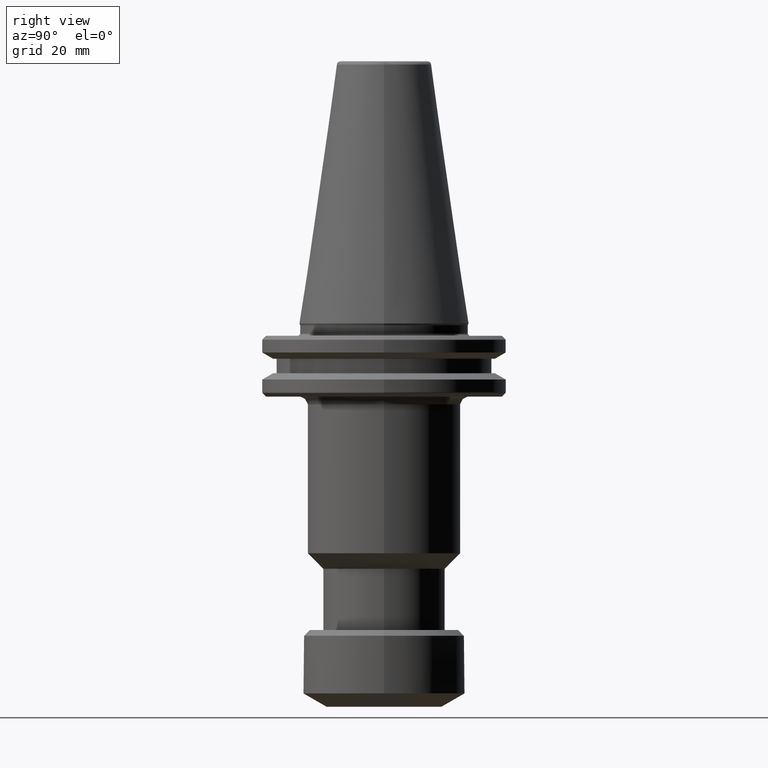
[diagram: clean part render]
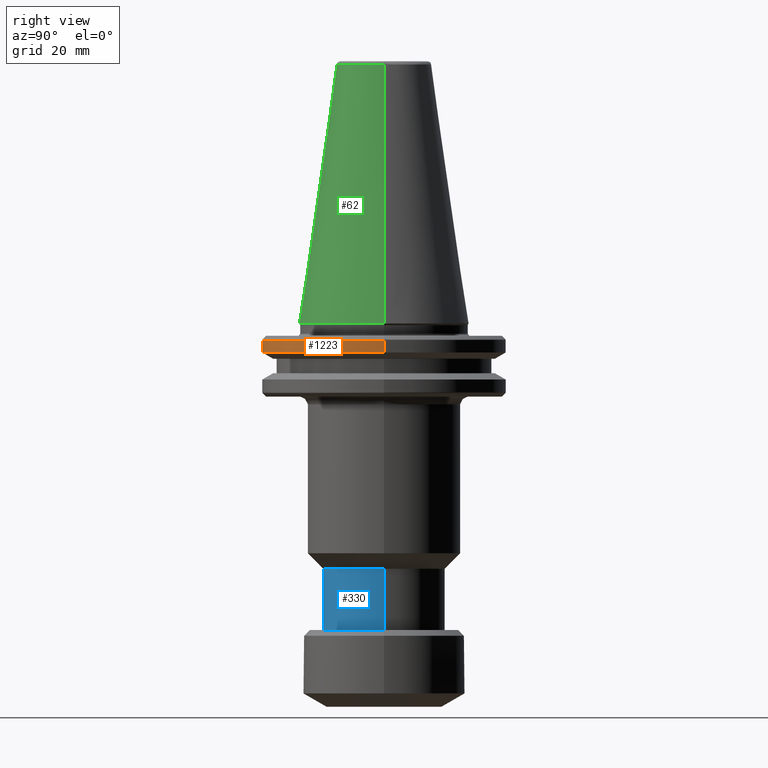
[diagram: same view with three faces highlighted in distinct colors, each labeled with its STEP entity id]
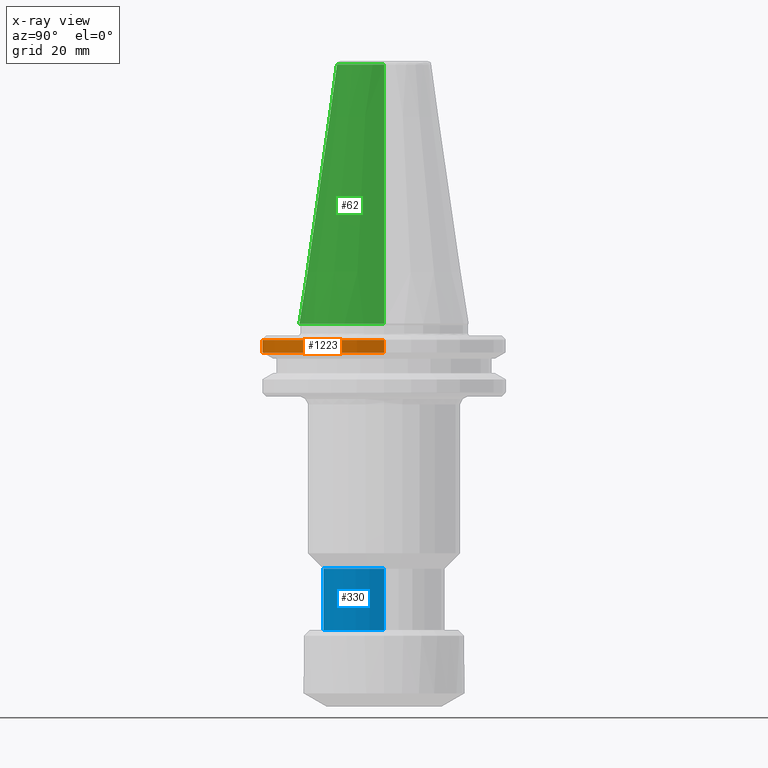
[diagram: x-ray of the same camera — body ghosted, the three highlighted faces saturated]
A machine part, right view with three faces highlighted in distinct colors.
The next image is the same camera in x-ray (body ghosted, the three faces saturated) — at least one of them is partly hidden behind the body in this view.
Their STEP definitions:

[orange] entity #1223 — the highlighted conical surface has half-angle 0.001 deg.
#30 = AXIS2_PLACEMENT_3D ( 'NONE', #211, #1107, #1100 ) ;
#75 = CARTESIAN_POINT ( 'NONE',  ( -31.75202278528214400, 0.0000000000000000000, -4.365064469087714700 ) ) ;
#108 = DIRECTION ( 'NONE',  ( -1.000000000000000000, 0.0000000000000000000, 0.0000000000000000000 ) ) ;
#151 = VERTEX_POINT ( 'NONE', #439 ) ;
#178 = ORIENTED_EDGE ( 'NONE', *, *, #1316, .T. ) ;
#210 = EDGE_CURVE ( 'NONE', #1372, #361, #1543, .T. ) ;
#211 = CARTESIAN_POINT ( 'NONE',  ( 0.0000000000000000000, 0.0000000000000000000, -7.578119752296469600 ) ) ;
#226 = VECTOR ( 'NONE', #997, 1000.000000000000000 ) ;
#340 = ORIENTED_EDGE ( 'NONE', *, *, #640, .F. ) ;
#346 = CARTESIAN_POINT ( 'NONE',  ( 31.75202278528214400, 0.0000000000000000000, -4.365064469087714700 ) ) ;
#361 = VERTEX_POINT ( 'NONE', #1569 ) ;
#439 = CARTESIAN_POINT ( 'NONE',  ( -31.75208562117094100, 0.0000000000000000000, -7.578119752296469600 ) ) ;
#562 = VERTEX_POINT ( 'NONE', #1239 ) ;
#640 = EDGE_CURVE ( 'NONE', #562, #1372, #781, .T. ) ;
#699 = CIRCLE ( 'NONE', #30, 31.75208562117094100 ) ;
#746 = CONICAL_SURFACE ( 'NONE', #833, 31.75202278528214400, 1.955642939544399700E-005 ) ;
#781 = CIRCLE ( 'NONE', #943, 31.75202278528214400 ) ;
#826 = DIRECTION ( 'NONE',  ( 1.955642939419742500E-005, 2.394971866035508900E-021, -0.9999999998087730800 ) ) ;
#833 = AXIS2_PLACEMENT_3D ( 'NONE', #1120, #1127, #108 ) ;
#943 = AXIS2_PLACEMENT_3D ( 'NONE', #1251, #1640, #1503 ) ;
#997 = DIRECTION ( 'NONE',  ( -1.955642939419742500E-005, 0.0000000000000000000, -0.9999999998087730800 ) ) ;
#1100 = DIRECTION ( 'NONE',  ( 1.000000000000000000, 0.0000000000000000000, 0.0000000000000000000 ) ) ;
#1103 = EDGE_LOOP ( 'NONE', ( #1214, #340, #1359, #178 ) ) ;
#1107 = DIRECTION ( 'NONE',  ( -0.0000000000000000000, -0.0000000000000000000, 1.000000000000000000 ) ) ;
#1120 = CARTESIAN_POINT ( 'NONE',  ( 0.0000000000000000000, 0.0000000000000000000, -4.365064469087714700 ) ) ;
#1127 = DIRECTION ( 'NONE',  ( 0.0000000000000000000, 0.0000000000000000000, -1.000000000000000000 ) ) ;
#1158 = FACE_OUTER_BOUND ( 'NONE', #1103, .T. ) ;
#1160 = EDGE_CURVE ( 'NONE', #562, #151, #1621, .T. ) ;
#1207 = VECTOR ( 'NONE', #826, 1000.000000000000000 ) ;
#1214 = ORIENTED_EDGE ( 'NONE', *, *, #210, .F. ) ;
#1223 = ADVANCED_FACE ( 'NONE', ( #1158 ), #746, .T. ) ;
#1239 = CARTESIAN_POINT ( 'NONE',  ( -31.75202278528214400, 3.888501307044960700E-015, -4.365064469087714700 ) ) ;
#1251 = CARTESIAN_POINT ( 'NONE',  ( 0.0000000000000000000, 0.0000000000000000000, -4.365064469087714700 ) ) ;
#1316 = EDGE_CURVE ( 'NONE', #151, #361, #699, .T. ) ;
#1359 = ORIENTED_EDGE ( 'NONE', *, *, #1160, .T. ) ;
#1372 = VERTEX_POINT ( 'NONE', #346 ) ;
#1503 = DIRECTION ( 'NONE',  ( 1.000000000000000000, 0.0000000000000000000, 0.0000000000000000000 ) ) ;
#1543 = LINE ( 'NONE', #1589, #1207 ) ;
#1569 = CARTESIAN_POINT ( 'NONE',  ( 31.75208562117094100, 3.888509002221969500E-015, -7.578119752296469600 ) ) ;
#1589 = CARTESIAN_POINT ( 'NONE',  ( 31.75202278528214400, 3.888501307044960700E-015, -4.365064469087714700 ) ) ;
#1621 = LINE ( 'NONE', #75, #226 ) ;
#1640 = DIRECTION ( 'NONE',  ( -0.0000000000000000000, -0.0000000000000000000, 1.000000000000000000 ) ) ;

[blue] entity #330 — the highlighted cylindrical surface (partial cylindrical patch) has radius 15.95 mm, axis along (-0, 0, 1).
#18 = EDGE_CURVE ( 'NONE', #1295, #1066, #481, .T. ) ;
#95 = DIRECTION ( 'NONE',  ( -4.350403701509233400E-016, 0.0000000000000000000, 1.000000000000000000 ) ) ;
#184 = DIRECTION ( 'NONE',  ( -4.350403701509233400E-016, 0.0000000000000000000, 1.000000000000000000 ) ) ;
#220 = CARTESIAN_POINT ( 'NONE',  ( 15.95000000000000300, 0.0000000000000000000, -64.00000000000000000 ) ) ;
#259 = VERTEX_POINT ( 'NONE', #1170 ) ;
#268 = DIRECTION ( 'NONE',  ( 1.000000000000000000, 0.0000000000000000000, 0.0000000000000000000 ) ) ;
#279 = DIRECTION ( 'NONE',  ( -4.350403701509233400E-016, 0.0000000000000000000, 1.000000000000000000 ) ) ;
#330 = ADVANCED_FACE ( 'NONE', ( #789 ), #711, .T. ) ;
#471 = CARTESIAN_POINT ( 'NONE',  ( 15.95000000000000300, 0.0000000000000000000, -79.99999999999998600 ) ) ;
#481 = CIRCLE ( 'NONE', #1459, 15.95000000000000300 ) ;
#577 = ORIENTED_EDGE ( 'NONE', *, *, #18, .T. ) ;
#626 = EDGE_CURVE ( 'NONE', #259, #1529, #1194, .T. ) ;
#675 = ORIENTED_EDGE ( 'NONE', *, *, #626, .F. ) ;
#711 = CYLINDRICAL_SURFACE ( 'NONE', #894, 15.95000000000000300 ) ;
#742 = EDGE_LOOP ( 'NONE', ( #1591, #577, #804, #675 ) ) ;
#784 = LINE ( 'NONE', #1392, #1390 ) ;
#789 = FACE_OUTER_BOUND ( 'NONE', #742, .T. ) ;
#804 = ORIENTED_EDGE ( 'NONE', *, *, #1439, .T. ) ;
#867 = AXIS2_PLACEMENT_3D ( 'NONE', #1375, #1444, #1369 ) ;
#888 = DIRECTION ( 'NONE',  ( 1.000000000000000000, 0.0000000000000000000, 8.700807403018466700E-016 ) ) ;
#894 = AXIS2_PLACEMENT_3D ( 'NONE', #1628, #184, #888 ) ;
#955 = CARTESIAN_POINT ( 'NONE',  ( 15.95000000000000300, 0.0000000000000000000, -79.99999999999998600 ) ) ;
#993 = CARTESIAN_POINT ( 'NONE',  ( -15.95000000000000300, 1.953311644640028500E-015, -79.99999999999998600 ) ) ;
#1066 = VERTEX_POINT ( 'NONE', #955 ) ;
#1079 = VECTOR ( 'NONE', #1245, 1000.000000000000000 ) ;
#1164 = CARTESIAN_POINT ( 'NONE',  ( -3.018698972393786200E-030, 0.0000000000000000000, -79.99999999999998600 ) ) ;
#1170 = CARTESIAN_POINT ( 'NONE',  ( -15.95000000000000300, 1.953311644640028500E-015, -64.00000000000000000 ) ) ;
#1194 = CIRCLE ( 'NONE', #867, 15.95000000000000300 ) ;
#1245 = DIRECTION ( 'NONE',  ( -4.350403701509233400E-016, 0.0000000000000000000, 1.000000000000000000 ) ) ;
#1273 = EDGE_CURVE ( 'NONE', #1295, #259, #784, .T. ) ;
#1295 = VERTEX_POINT ( 'NONE', #993 ) ;
#1369 = DIRECTION ( 'NONE',  ( 1.000000000000000000, 0.0000000000000000000, 0.0000000000000000000 ) ) ;
#1375 = CARTESIAN_POINT ( 'NONE',  ( 0.0000000000000000000, 0.0000000000000000000, -64.00000000000000000 ) ) ;
#1390 = VECTOR ( 'NONE', #95, 1000.000000000000000 ) ;
#1392 = CARTESIAN_POINT ( 'NONE',  ( -15.95000000000000300, 1.953311644640028500E-015, -80.00000000000001400 ) ) ;
#1439 = EDGE_CURVE ( 'NONE', #1066, #1529, #1505, .T. ) ;
#1444 = DIRECTION ( 'NONE',  ( 0.0000000000000000000, 0.0000000000000000000, 1.000000000000000000 ) ) ;
#1459 = AXIS2_PLACEMENT_3D ( 'NONE', #1164, #279, #268 ) ;
#1505 = LINE ( 'NONE', #471, #1079 ) ;
#1529 = VERTEX_POINT ( 'NONE', #220 ) ;
#1591 = ORIENTED_EDGE ( 'NONE', *, *, #1273, .F. ) ;
#1628 = CARTESIAN_POINT ( 'NONE',  ( 0.0000000000000000000, 0.0000000000000000000, -80.00000000000000000 ) ) ;

[green] entity #62 — the highlighted conical surface has half-angle 8.297 deg.
#7 = CARTESIAN_POINT ( 'NONE',  ( 22.22499999999999400, 2.721777511104992100E-015, 0.0000000000000000000 ) ) ;
#43 = CONICAL_SURFACE ( 'NONE', #1639, 22.22499999999999400, 0.1448138465495947800 ) ;
#62 = ADVANCED_FACE ( 'NONE', ( #1445 ), #43, .T. ) ;
#116 = CARTESIAN_POINT ( 'NONE',  ( 22.22499999999999400, 2.721777511104992100E-015, 0.0000000000000000000 ) ) ;
#186 = CIRCLE ( 'NONE', #1056, 22.22499999999999400 ) ;
#321 = ORIENTED_EDGE ( 'NONE', *, *, #899, .F. ) ;
#335 = EDGE_CURVE ( 'NONE', #1111, #526, #1044, .T. ) ;
#336 = DIRECTION ( 'NONE',  ( -1.000000000000000000, 0.0000000000000000000, 0.0000000000000000000 ) ) ;
#381 = AXIS2_PLACEMENT_3D ( 'NONE', #814, #1068, #941 ) ;
#383 = EDGE_LOOP ( 'NONE', ( #321, #1098, #544, #1613 ) ) ;
#465 = LINE ( 'NONE', #7, #763 ) ;
#516 = VECTOR ( 'NONE', #767, 1000.000000000000100 ) ;
#526 = VERTEX_POINT ( 'NONE', #1264 ) ;
#544 = ORIENTED_EDGE ( 'NONE', *, *, #1607, .T. ) ;
#590 = DIRECTION ( 'NONE',  ( -0.0000000000000000000, -0.0000000000000000000, 1.000000000000000000 ) ) ;
#712 = DIRECTION ( 'NONE',  ( 0.0000000000000000000, 0.0000000000000000000, -1.000000000000000000 ) ) ;
#722 = CARTESIAN_POINT ( 'NONE',  ( 12.37469537600000400, -9.137124401303337300E-010, 67.54430822700000200 ) ) ;
#763 = VECTOR ( 'NONE', #1416, 1000.000000000000100 ) ;
#767 = DIRECTION ( 'NONE',  ( -0.1443082272694599400, 0.0000000000000000000, -0.9895327864918603800 ) ) ;
#814 = CARTESIAN_POINT ( 'NONE',  ( 0.0000000000000000000, 0.0000000000000000000, 67.54430822699998800 ) ) ;
#845 = LINE ( 'NONE', #1424, #516 ) ;
#899 = EDGE_CURVE ( 'NONE', #1111, #1234, #465, .T. ) ;
#941 = DIRECTION ( 'NONE',  ( -1.000000000000000000, 0.0000000000000000000, 0.0000000000000000000 ) ) ;
#965 = DIRECTION ( 'NONE',  ( -1.000000000000000000, 0.0000000000000000000, 0.0000000000000000000 ) ) ;
#973 = CARTESIAN_POINT ( 'NONE',  ( 0.0000000000000000000, 0.0000000000000000000, 0.0000000000000000000 ) ) ;
#1044 = CIRCLE ( 'NONE', #381, 12.37469537600000400 ) ;
#1055 = CARTESIAN_POINT ( 'NONE',  ( 0.0000000000000000000, 0.0000000000000000000, 0.0000000000000000000 ) ) ;
#1056 = AXIS2_PLACEMENT_3D ( 'NONE', #973, #590, #336 ) ;
#1068 = DIRECTION ( 'NONE',  ( 0.0000000000000000000, 0.0000000000000000000, -1.000000000000000000 ) ) ;
#1098 = ORIENTED_EDGE ( 'NONE', *, *, #335, .T. ) ;
#1111 = VERTEX_POINT ( 'NONE', #722 ) ;
#1234 = VERTEX_POINT ( 'NONE', #116 ) ;
#1264 = CARTESIAN_POINT ( 'NONE',  ( -12.37469537600000400, 0.0000000000000000000, 67.54430822700000200 ) ) ;
#1332 = VERTEX_POINT ( 'NONE', #1492 ) ;
#1414 = EDGE_CURVE ( 'NONE', #1332, #1234, #186, .T. ) ;
#1416 = DIRECTION ( 'NONE',  ( 0.1443082272694599400, 1.767266086161729200E-017, -0.9895327864918603800 ) ) ;
#1424 = CARTESIAN_POINT ( 'NONE',  ( -22.22499999999999400, 0.0000000000000000000, 0.0000000000000000000 ) ) ;
#1445 = FACE_OUTER_BOUND ( 'NONE', #383, .T. ) ;
#1492 = CARTESIAN_POINT ( 'NONE',  ( -22.22499999999999400, 0.0000000000000000000, 0.0000000000000000000 ) ) ;
#1607 = EDGE_CURVE ( 'NONE', #526, #1332, #845, .T. ) ;
#1613 = ORIENTED_EDGE ( 'NONE', *, *, #1414, .T. ) ;
#1639 = AXIS2_PLACEMENT_3D ( 'NONE', #1055, #712, #965 ) ;